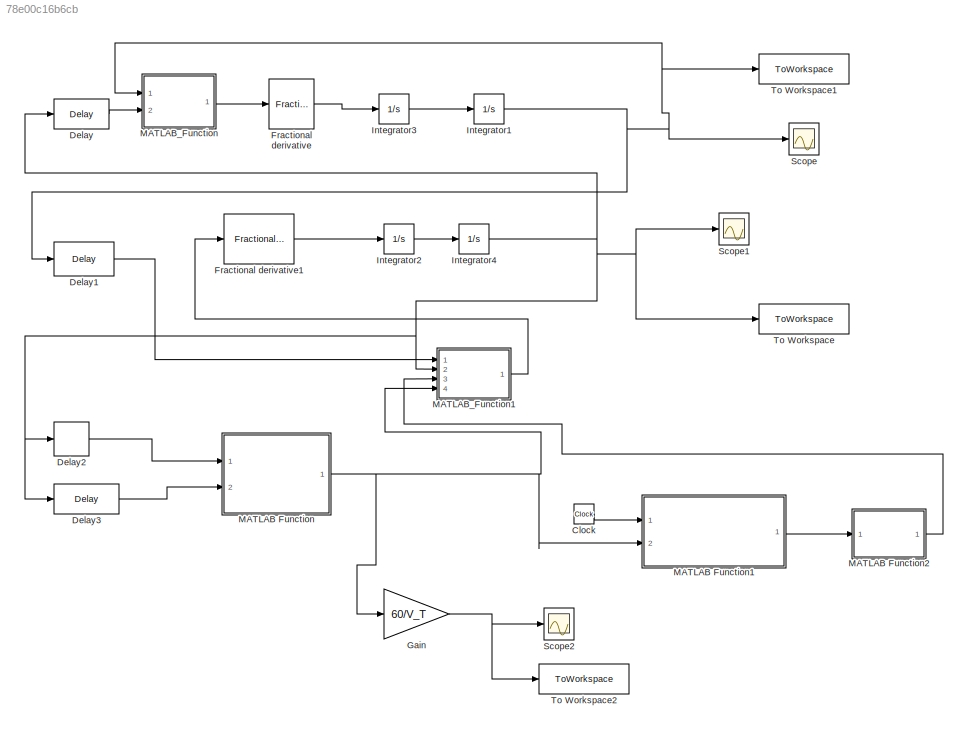
MODEL slx_78e00c16b6cb
KIND model
CONFIG AbsTol = auto
CONFIG EnableMultiTasking = off
CONFIG FixedStep = 0.05
CONFIG MaxStep = auto
CONFIG MinStep = auto
CONFIG RelTol = 1e-3
CONFIG SampleTimeConstraint = Unconstrained
CONFIG SolverName = FixedStepAuto
CONFIG StartTime = 0.0
CONFIG StopTime = 470.0
WORKSPACE source: mxarray member
WORKSPACE B = 760
WORKSPACE Mdot = 3.8
WORKSPACE Mu_c = -1445
WORKSPACE Mu_p = -1250
WORKSPACE P1 = 0.3
WORKSPACE V_T = 500
WORKSPACE Vt = 15000
WORKSPACE alpha = 0.0065
WORKSPACE alpha1 = 0.8
WORKSPACE lambda_c = 33.3
WORKSPACE lambda_p = 33.3
WORKSPACE qdot = 100
BLOCK [Clock] Clock
BLOCK [Delay] Delay
  DelayLength = 400
  InitialCondition = 41.6
  InputPortMap = u0
  Ports = [1, 1]
BLOCK [Delay] Delay1
  DelayLength = 600
  InitialCondition = 47.3
  InputPortMap = u0
  Ports = [1, 1]
BLOCK [Delay] Delay2
  DelayLength = 80
  InitialCondition = 41.6
  InputPortMap = u0
  Ports = [1, 1]
BLOCK [Delay] Delay3
  DelayLength = 168
  InitialCondition = 41.6
  InputPortMap = u0
  Ports = [1, 1]
BLOCK [Reference] Fractional derivative  REF=fod/Fractional  (lib defined in slx_5cb2d42c7bef)
derivative
  Ports = [1, 1]
  SourceBlock = fod/Fractional\nderivative
  SourceProductName = FOMCON Toolbox
  SourceType = Fractional derivative
BLOCK [Reference] Fractional derivative1  REF=fod/Fractional  (lib defined in slx_5cb2d42c7bef)
derivative
  Ports = [1, 1]
  SourceBlock = fod/Fractional\nderivative
  SourceProductName = FOMCON Toolbox
  SourceType = Fractional derivative
BLOCK [Gain] Gain
  Gain = 60/V_T
BLOCK [Integrator] Integrator1
  InitialCondition = 47.6
  Ports = [1, 1]
BLOCK [Integrator] Integrator2
  Ports = [1, 1]
BLOCK [Integrator] Integrator3
  Ports = [1, 1]
BLOCK [Integrator] Integrator4
  InitialCondition = 41.3
  Ports = [1, 1]
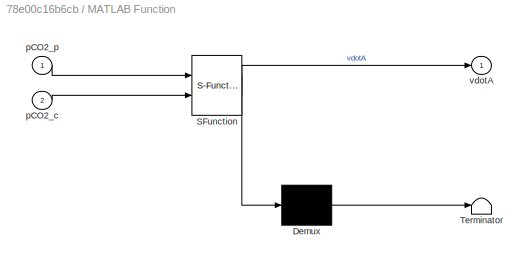
BLOCK [SubSystem] MATLAB Function
  ErrorFcn = Stateflow.Translate.translate
  PermitHierarchicalResolution = ExplicitOnly
  Ports = [2, 1]
  RequestExecContextInheritance = off
  SFBlockType = MATLAB Function
  TreatAsAtomicUnit = on
BLOCK [Demux] MATLAB Function/ Demux 
  Outputs = 1
  Ports = [1, 1]
BLOCK [S-Function] MATLAB Function/ SFunction 
  EnableBusSupport = on
  FunctionName = sf_sfun
  PortCounts = [2 2]
  Ports = [2, 2]
  SFcnIsStateOwnerBlock = off
  SFunctionDeploymentMode = off
  Tag = Stateflow S-Function 3
BLOCK [Terminator] MATLAB Function/ Terminator 
BLOCK [Inport] MATLAB Function/pCO2_c
  Port = 2
BLOCK [Inport] MATLAB Function/pCO2_p
BLOCK [Outport] MATLAB Function/vdotA
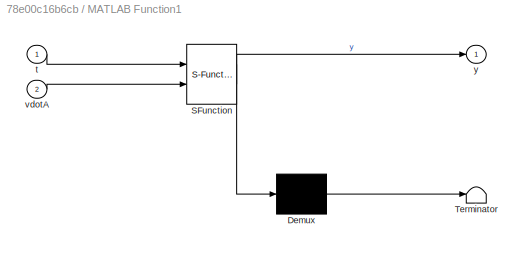
BLOCK [SubSystem] MATLAB Function1
  ErrorFcn = Stateflow.Translate.translate
  PermitHierarchicalResolution = ExplicitOnly
  Ports = [2, 1]
  RequestExecContextInheritance = off
  SFBlockType = MATLAB Function
  TreatAsAtomicUnit = on
BLOCK [Demux] MATLAB Function1/ Demux 
  Outputs = 1
  Ports = [1, 1]
BLOCK [S-Function] MATLAB Function1/ SFunction 
  EnableBusSupport = on
  FunctionName = sf_sfun
  PortCounts = [2 2]
  Ports = [2, 2]
  SFcnIsStateOwnerBlock = off
  SFunctionDeploymentMode = off
  Tag = Stateflow S-Function 4
BLOCK [Terminator] MATLAB Function1/ Terminator 
BLOCK [Inport] MATLAB Function1/t
BLOCK [Inport] MATLAB Function1/vdotA
  Port = 2
BLOCK [Outport] MATLAB Function1/y
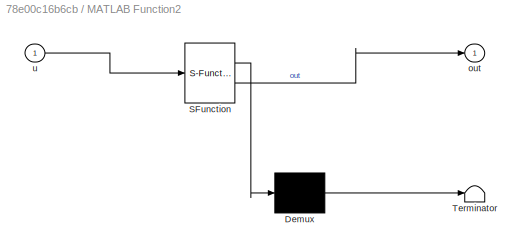
BLOCK [SubSystem] MATLAB Function2
  ErrorFcn = Stateflow.Translate.translate
  PermitHierarchicalResolution = ExplicitOnly
  Ports = [1, 1]
  RequestExecContextInheritance = off
  SFBlockType = MATLAB Function
  TreatAsAtomicUnit = on
BLOCK [Demux] MATLAB Function2/ Demux 
  Outputs = 1
  Ports = [1, 1]
BLOCK [S-Function] MATLAB Function2/ SFunction 
  EnableBusSupport = on
  FunctionName = sf_sfun
  PortCounts = [1 2]
  Ports = [1, 2]
  SFcnIsStateOwnerBlock = off
  SFunctionDeploymentMode = off
  Tag = Stateflow S-Function 5
BLOCK [Terminator] MATLAB Function2/ Terminator 
BLOCK [Outport] MATLAB Function2/out
BLOCK [Inport] MATLAB Function2/u
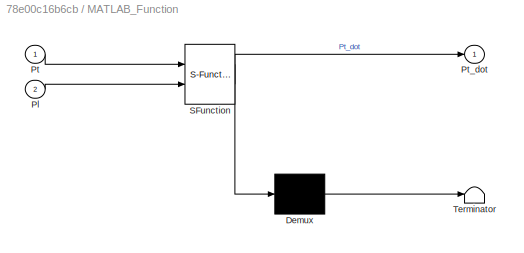
BLOCK [SubSystem] MATLAB_Function
  ErrorFcn = Stateflow.Translate.translate
  PermitHierarchicalResolution = ExplicitOnly
  Ports = [2, 1]
  RequestExecContextInheritance = off
  SFBlockType = MATLAB Function
  TreatAsAtomicUnit = on
BLOCK [Demux] MATLAB_Function/ Demux 
  Outputs = 1
  Ports = [1, 1]
BLOCK [S-Function] MATLAB_Function/ SFunction 
  EnableBusSupport = on
  FunctionName = sf_sfun
  PortCounts = [2 2]
  Ports = [2, 2]
  SFcnIsStateOwnerBlock = off
  SFunctionDeploymentMode = off
  Tag = Stateflow S-Function 2
BLOCK [Terminator] MATLAB_Function/ Terminator 
BLOCK [Inport] MATLAB_Function/Pl
  Port = 2
BLOCK [Inport] MATLAB_Function/Pt
BLOCK [Outport] MATLAB_Function/Pt_dot
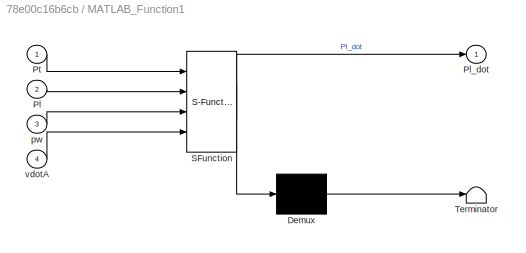
BLOCK [SubSystem] MATLAB_Function1
  ErrorFcn = Stateflow.Translate.translate
  PermitHierarchicalResolution = ExplicitOnly
  Ports = [4, 1]
  RequestExecContextInheritance = off
  SFBlockType = MATLAB Function
  TreatAsAtomicUnit = on
BLOCK [Demux] MATLAB_Function1/ Demux 
  Outputs = 1
  Ports = [1, 1]
BLOCK [S-Function] MATLAB_Function1/ SFunction 
  EnableBusSupport = on
  FunctionName = sf_sfun
  PortCounts = [4 2]
  Ports = [4, 2]
  SFcnIsStateOwnerBlock = off
  SFunctionDeploymentMode = off
  Tag = Stateflow S-Function 1
BLOCK [Terminator] MATLAB_Function1/ Terminator 
BLOCK [Inport] MATLAB_Function1/Pl
  Port = 2
BLOCK [Outport] MATLAB_Function1/Pl_dot
BLOCK [Inport] MATLAB_Function1/Pt
BLOCK [Inport] MATLAB_Function1/pw
  Port = 3
BLOCK [Inport] MATLAB_Function1/vdotA
  Port = 4
BLOCK [Scope] Scope
  Floating = off
  NumInputPorts = 1
  Ports = [1]
  ScopeSpecificationString = Simulink.scopes.TimeScopeBlockCfg('CurrentConfiguration', extmgr.ConfigurationSet(extmgr.Configuration('Core','General UI',true),extmgr.Configuration('Core','Source UI',true),extmgr.Configuration('Sources','WiredSimulink',true),extmgr.Configuration('Visuals','Time Domain',true,'SerializedDisplays',{struct('MinYLimReal','-5.94704','MaxYLimReal','53.54967','YLabelReal','','MinYLimMag','0.00000','Max...<+1356ch>
BLOCK [Scope] Scope1
  Floating = off
  NumInputPorts = 1
  Ports = [1]
  ScopeSpecificationString = Simulink.scopes.TimeScopeBlockCfg('CurrentConfiguration', extmgr.ConfigurationSet(extmgr.Configuration('Core','General UI',true),extmgr.Configuration('Core','Source UI',true),extmgr.Configuration('Sources','WiredSimulink',true,'DataLoggingVariableName','ScopeData1'),extmgr.Configuration('Visuals','Time Domain',true,'SerializedDisplays',{struct('MinYLimReal','40.21132','MaxYLimReal','41.09905','YLa...<+1416ch>
BLOCK [Scope] Scope2
  Floating = off
  NumInputPorts = 1
  Ports = [1]
  ScopeSpecificationString = Simulink.scopes.TimeScopeBlockCfg('CurrentConfiguration', extmgr.ConfigurationSet(extmgr.Configuration('Core','General UI',true),extmgr.Configuration('Core','Source UI',true),extmgr.Configuration('Sources','WiredSimulink',true,'DataLoggingVariableName','ScopeData1'),extmgr.Configuration('Visuals','Time Domain',true,'SerializedDisplays',{struct('MinYLimReal','40.21132','MaxYLimReal','41.09905','YLa...<+1417ch>
BLOCK [ToWorkspace] To Workspace
  FixptAsFi = on
  MaxDataPoints = inf
  Ports = [1]
  SampleTime = -1
  SaveFormat = Timeseries
  VariableName = Pl
BLOCK [ToWorkspace] To Workspace1
  FixptAsFi = on
  MaxDataPoints = inf
  Ports = [1]
  SampleTime = -1
  SaveFormat = Timeseries
  VariableName = Pt
BLOCK [ToWorkspace] To Workspace2
  FixptAsFi = on
  MaxDataPoints = inf
  Ports = [1]
  SampleTime = -1
  SaveFormat = Timeseries
  VariableName = RR
LINE Clock:1 -> MATLAB Function1:1
LINE Delay1:1 -> MATLAB_Function1:1
LINE Delay2:1 -> MATLAB Function:1
LINE Delay3:1 -> MATLAB Function:2
LINE Delay:1 -> MATLAB_Function:2
LINE Fractional derivative1:1 -> Integrator2:1
LINE Fractional derivative:1 -> Integrator3:1
NET Gain:1 -> Scope2:1, To Workspace2:1
NET Integrator1:1 -> Delay1:1, MATLAB_Function:1, Scope:1, To Workspace1:1
LINE Integrator2:1 -> Integrator4:1
LINE Integrator3:1 -> Integrator1:1
NET Integrator4:1 -> Delay2:1, Delay3:1, Delay:1, MATLAB_Function1:2, Scope1:1, To Workspace:1
LINE MATLAB Function1:1 -> MATLAB Function2:1
LINE MATLAB Function2:1 -> MATLAB_Function1:3
NET MATLAB Function:1 -> Gain:1, MATLAB Function1:2, MATLAB_Function1:4
LINE MATLAB_Function1:1 -> Fractional derivative1:1
LINE MATLAB_Function:1 -> Fractional derivative:1
note: NET lines group one-source signal fan-out (src -> all destinations, sorted); 1:1 wires keep LINE
CHART MATLAB_Function1 states=1 transitions=1
  STATE_LABEL 'eML_blk_kernel()'
  STATE_LABEL 'SCRIPT:\nfunction Pl_dot = fcn(Pt,Pl,pw,vdotA)\n\nFp=100;\n\nB = 760;\n\nP1 = 0.3;\n\n%V_T=500;\nVl=3200;\n\nalpha = 0.0065;\n\n%Pl_dot = ((lambda_c*P1 + alpha*qdot*B)/Vl)*Pt - ((alpha*qdot*B + Mu_c+ vldot/B)/Vl)*Pl - (lambda_c/Vl)*Pt*Pl + Mu_c*P1/Vl;\n%Pl_dot = (alpha*Fp*B/Vl)*Pt - ((alpha*Fp*B + (1-pulsewav1(t,V_T/vdotA))*vdotA)/Vl)*Pl + (pusewav1(t,V_T/vdotA)*vdotA*P1)/Vl;\nPl_dot = (alpha*Fp*B/Vl)*Pt - ((alph...<+49ch>'
CHART MATLAB_Function states=1 transitions=1
  STATE_LABEL 'eML_blk_kernel()'
  STATE_LABEL 'SCRIPT:\nfunction Pt_dot = fcn(Pt,Pl)\n\nqdot = 100;\nMdot = 3.8;\nVt = 15000;\nalpha = 0.0065;\n\nPt_dot = (-qdot/Vt)*Pt + (qdot/Vt)*Pl + (Mdot/(alpha*Vt));\n\n'
CHART MATLAB Function states=1 transitions=1
  STATE_LABEL 'eML_blk_kernel()'
  STATE_LABEL 'SCRIPT:\nfunction vdotA = vdotA_control(pCO2_p,pCO2_c)\n\n%GP=500*exp(-0.05*82);\n%GP=387.5*exp(-0.05*99);\nGP=2000*exp(-0.05*82);\nIP=39;\n%IP=33;\nMRB=50/60;\n%MRB=11/60;\nKCO2=0.0057;\n%KCO2=0.005;\nFB=80;\n%FB=238/60;\nIC=39;\n%IC=33;\nGC=1500/60;\n%GC=22.8;\n\nMu_c = -GC*(MRB/(KCO2*FB) + IC);\n%Mu_c = Mu_c;\nMu_p=-GP*IP;\nlambda_c=GC;\nlambda_p=GP;\n\nvdotA = max(0,lambda_c*pCO2_c + Mu_c)+max(0,lambda_p*pCO2_p + Mu_p...<+2ch>'
CHART MATLAB Function1 states=1 transitions=1
  STATE_LABEL 'eML_blk_kernel()'
  STATE_LABEL 'SCRIPT:\nfunction y = modulatedSin(t,vdotA)\n\nV_T = 500;\nf = vdotA/V_T;\n\ny = sin(2*pi*f*t);\n'
CHART MATLAB Function2 states=1 transitions=1
  STATE_LABEL 'eML_blk_kernel()'
  STATE_LABEL 'SCRIPT:\nfunction out = rectify(u)\n\nif u>0\n    out=1;\nelse\n    out=0;\nend\n'
CHART  states=0 transitions=0
CHART  states=0 transitions=0
CHART  states=0 transitions=0
CHART  states=0 transitions=0
CHART  states=0 transitions=0
